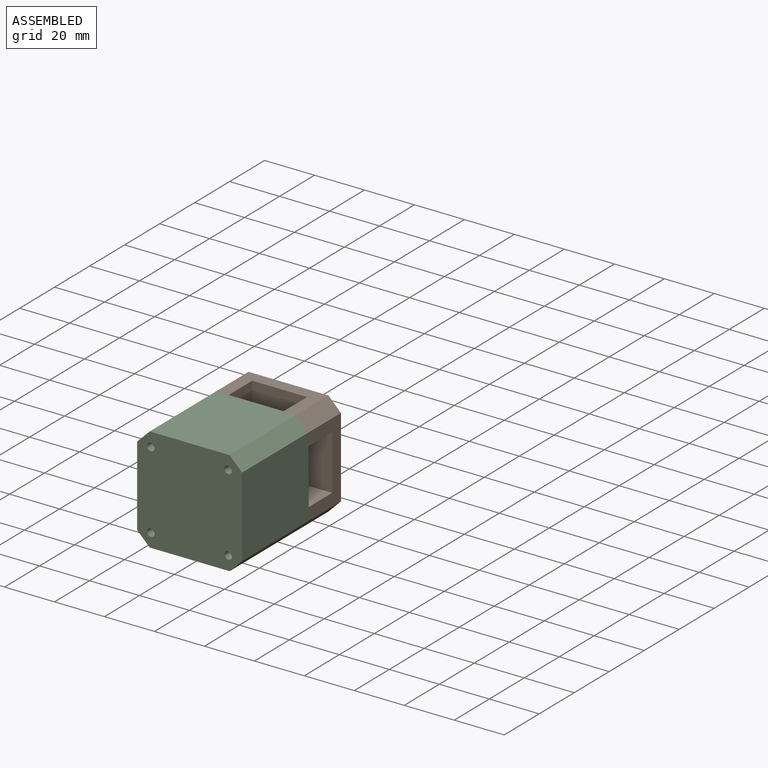
[diagram: assembled view]
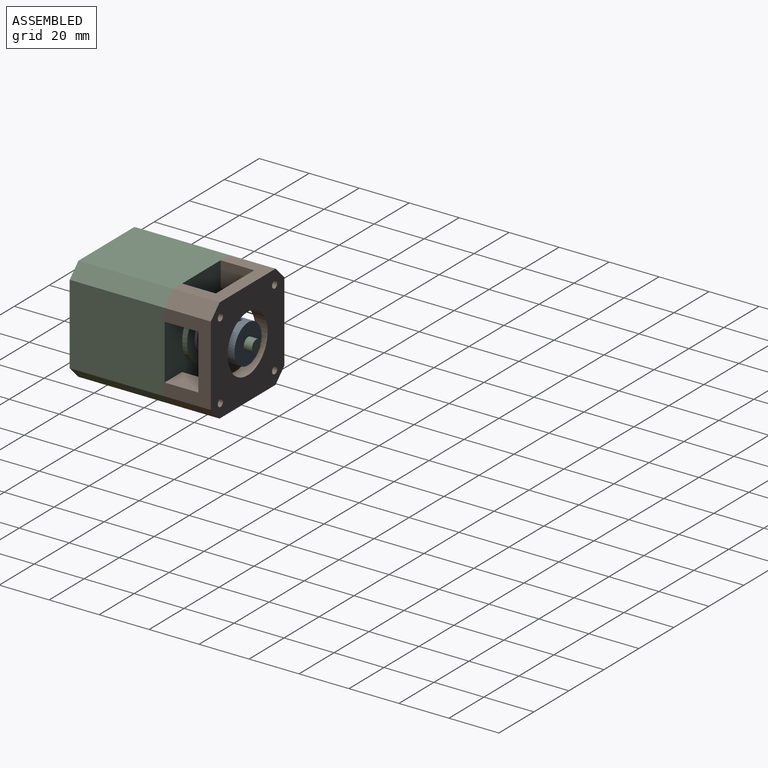
[diagram: assembled view, second angle]
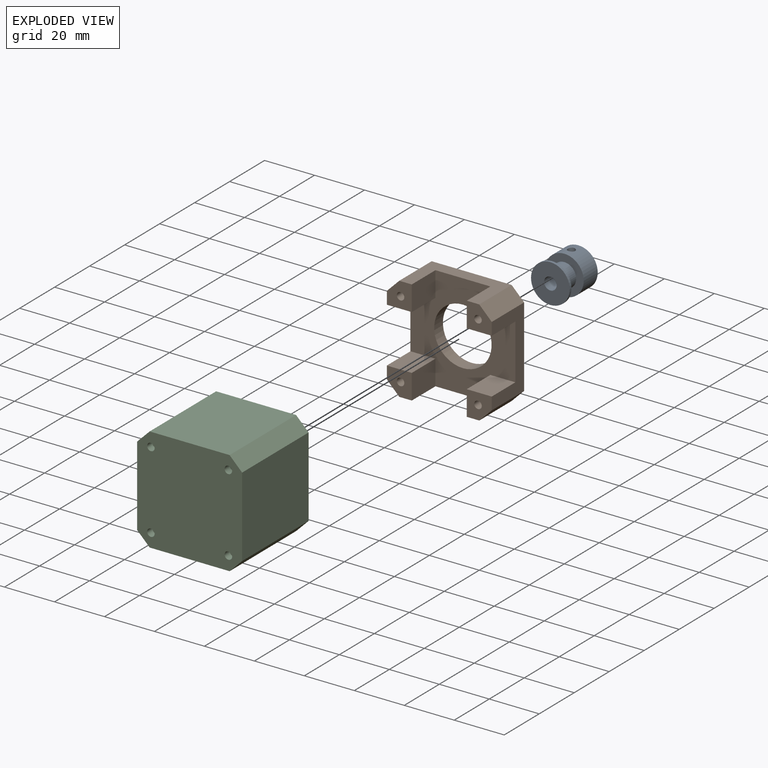
[diagram: exploded view]
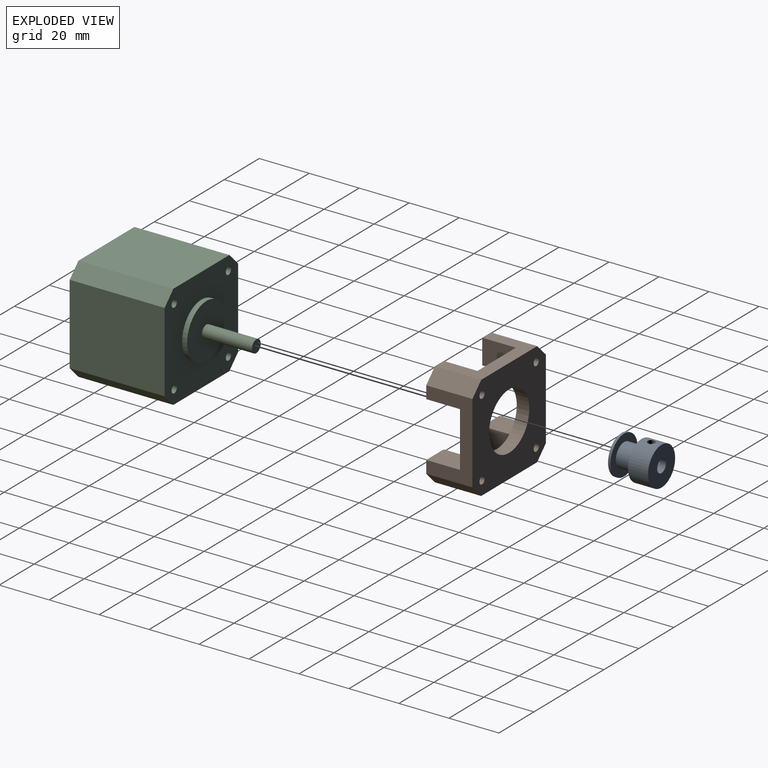
[diagram: exploded view, second angle]
ASSEMBLY  parts=3 mates=2
PART A: 10 faces, bbox 15.5x15.5x16 mm
  f0: cylinder r=7.75mm len=15.5mm, axis (0,0,-1), area 375.3mm2, adj f1,f2,f8,f9
  f1: plane 15.5x15.5mm, normal (0,0,1), area 118.4mm2, adj f0,f3
  f2: plane 15.5x15.5mm, normal (0,0,-1), area 169.1mm2, adj f0,f7
  f3: cylinder r=4.73mm len=9.46mm, axis (0,0,-1), area 208mm2, adj f1,f6
  f4: cylinder r=7.75mm len=15.5mm, axis (0,0,-1), area 48.7mm2, adj f5,f6
  f5: plane 15.5x15.5mm, normal (0,0,1), area 169.1mm2, adj f4,f7
  f6: plane 15.5x15.5mm, normal (0,0,-1), area 118.4mm2, adj f3,f4
  f7: cylinder r=2.5mm len=16mm, axis (0,0,1), area 236.5mm2, adj f2,f5,f8,f9
  f8: cylinder r=1.5mm len=5.75mm, axis (0,-1,0), area 51.1mm2, adj f0,f7
  f9: cylinder r=1.5mm len=5.75mm, axis (1,0,0), area 51.1mm2, adj f0,f7
PART B: 37 faces, bbox 42x42x18.5 mm
  f0: plane 42x42mm, normal (0,0,1), area 948.5mm2, adj f1,f2,f3,f4,f6,f7,f9,f10
  f1: plane 32x18.5mm, normal (1,0,0), area 295mm2, adj f0,f5,f9,f11,f12,f14,f23,f24
  f2: plane 32x18.5mm, normal (0,1,0), area 295mm2, adj f0,f5,f7,f8,f10,f11,f23,f26
  f3: plane 32x18.5mm, normal (-1,0,0), area 295mm2, adj f0,f5,f6,f8,f15,f17,f25,f26
  f4: plane 32x18.5mm, normal (0,-1,0), area 295mm2, adj f0,f5,f13,f14,f16,f17,f24,f25
  f5: plane 42x42mm, normal (0,0,-1), area 1270.3mm2, adj f1,f2,f3,f4,f18,f19,f20,f21
  f6: plane 13.5x10mm, normal (0,-1,0), area 135mm2, adj f0,f3,f7,f8
  f7: plane 13.5x10mm, normal (1,0,0), area 126.1mm2, adj f0,f2,f6,f8,f27,f28,f29,f30
  f8: plane 10x10mm, normal (0,0,1), area 80.4mm2, adj f2,f3,f6,f7,f22,f26
  f9: plane 13.5x10mm, normal (0,-1,0), area 135mm2, adj f0,f1,f10,f11
  f10: plane 13.5x10mm, normal (-1,0,0), area 135mm2, adj f0,f2,f9,f11
  f11: plane 10x10mm, normal (0,0,1), area 80.4mm2, adj f1,f2,f9,f10,f21,f23
  f12: plane 13.5x10mm, normal (0,1,0), area 135mm2, adj f0,f1,f13,f14
  f13: plane 13.5x10mm, normal (-1,0,0), area 135mm2, adj f0,f4,f12,f14
  f14: plane 10x10mm, normal (0,0,1), area 80.4mm2, adj f1,f4,f12,f13,f20,f24
  f15: plane 13.5x10mm, normal (0,1,0), area 135mm2, adj f0,f3,f16,f17
  f16: plane 13.5x10mm, normal (1,0,0), area 135mm2, adj f0,f4,f15,f17
  f17: plane 10x10mm, normal (0,0,1), area 80.4mm2, adj f3,f4,f15,f16,f19,f25
  f18: cylinder r=11.5mm len=23mm, axis (0,0,1), area 361.3mm2, adj f0,f5
  f19: cylinder r=1.5mm len=18.5mm, axis (0,0,1), area 174.4mm2, adj f5,f17
  f20: cylinder r=1.5mm len=18.5mm, axis (0,0,1), area 174.4mm2, adj f5,f14
  f21: cylinder r=1.5mm len=18.5mm, axis (0,0,1), area 174.4mm2, adj f5,f11
  f22: cylinder r=1.5mm len=18.5mm, axis (0,0,1), area 174.4mm2, adj f5,f8
  f23: plane 18.5x5mm, normal (0.71,0.71,0), area 130.8mm2, adj f1,f2,f5,f11
  f24: plane 18.5x5mm, normal (0.71,-0.71,0), area 130.8mm2, adj f1,f4,f5,f14
  f25: plane 18.5x5mm, normal (-0.71,-0.71,0), area 130.8mm2, adj f3,f4,f5,f17
  f26: plane 18.5x5mm, normal (-0.71,0.71,0), area 130.8mm2, adj f2,f3,f5,f8
  f27: plane 3.43x1.83mm, normal (0,-0.88,0.47), area 1.9mm2, adj f7,f28,f35,f36
  f28: plane 3.43x1.82mm, normal (0,0.88,0.47), area 1.9mm2, adj f7,f27,f29,f36
  f29: plane 0.87x0.5mm, normal (0,0,1), area 0.4mm2, adj f7,f28,f30,f36
  f30: plane 4.23x2.28mm, normal (0,-0.88,-0.47), area 2.4mm2, adj f7,f29,f31,f36
  f31: plane 2.62x0.5mm, normal (0,-1,0), area 1.3mm2, adj f7,f30,f32,f36
  f32: plane 0.81x0.5mm, normal (0,0,-1), area 0.4mm2, adj f7,f31,f33,f36
  f33: plane 2.66x0.5mm, normal (0,1,0), area 1.3mm2, adj f7,f32,f34,f36
  f34: plane 4.2x2.29mm, normal (0,0.88,-0.48), area 2.4mm2, adj f7,f33,f35,f36
  f35: plane 0.86x0.5mm, normal (0,0,1), area 0.4mm2, adj f7,f27,f34,f36
  f36: plane 6.86x5.38mm, normal (1,0,0), area 8.9mm2, adj f27,f28,f29,f30,f31,f32,f33,f34
PART C: 30 faces, bbox 42x42x60 mm
  f0: plane 38x32mm, normal (1,0,0), area 1216mm2, adj f4,f5,f7,f8
  f1: plane 38x32mm, normal (0,1,0), area 1216mm2, adj f4,f5,f8,f9
  f2: plane 38x32mm, normal (-1,0,0), area 1216mm2, adj f4,f5,f6,f9
  f3: plane 38x32mm, normal (0,-1,0), area 1216mm2, adj f4,f5,f6,f7
  f4: plane 42x42mm, normal (0,0,1), area 1305.6mm2, adj f0,f1,f2,f3,f6,f7,f8,f9
  f5: plane 42x42mm, normal (0,0,-1), area 1685.7mm2, adj f0,f1,f2,f3,f6,f7,f8,f9
  f6: plane 38x5mm, normal (-0.71,-0.71,0), area 268.7mm2, adj f2,f3,f4,f5
  f7: plane 38x5mm, normal (0.71,-0.71,0), area 268.7mm2, adj f0,f3,f4,f5
  f8: plane 38x5mm, normal (0.71,0.71,0), area 268.7mm2, adj f0,f1,f4,f5
  f9: plane 38x5mm, normal (-0.71,0.71,0), area 268.7mm2, adj f1,f2,f4,f5
  f10: cylinder r=11mm len=22mm, axis (0,0,-1), area 138.2mm2, adj f4,f11
  f11: plane 22x22mm, normal (0,0,1), area 360.5mm2, adj f10,f12
  f12: cylinder r=2.5mm len=20mm, axis (0,0,-1), area 314.2mm2, adj f11,f13
  f13: plane 5x5mm, normal (0,0,1), area 19.6mm2, adj f12
  f14: cylinder r=1.5mm len=4.5mm, axis (0,0,1), area 42.4mm2, adj f4,f15
  f15: plane 3x3mm, normal (0,0,1), area 7.1mm2, adj f14
  f16: cylinder r=1.5mm len=4.5mm, axis (0,0,1), area 42.4mm2, adj f4,f17
  f17: plane 3x3mm, normal (0,0,1), area 7.1mm2, adj f16
  f18: cylinder r=1.5mm len=4.5mm, axis (0,0,1), area 42.4mm2, adj f4,f19
  f19: plane 3x3mm, normal (0,0,1), area 7.1mm2, adj f18
  f20: cylinder r=1.5mm len=4.5mm, axis (0,0,1), area 42.4mm2, adj f4,f21
  f21: plane 3x3mm, normal (0,0,1), area 7.1mm2, adj f20
  f22: cylinder r=1.5mm len=3mm, axis (0,0,-1), area 28.3mm2, adj f5,f23
  f23: plane 3x3mm, normal (0,0,-1), area 7.1mm2, adj f22
  f24: cylinder r=1.5mm len=3mm, axis (0,0,-1), area 28.3mm2, adj f5,f25
  f25: plane 3x3mm, normal (0,0,-1), area 7.1mm2, adj f24
  f26: cylinder r=1.5mm len=3mm, axis (0,0,-1), area 28.3mm2, adj f5,f27
  f27: plane 3x3mm, normal (0,0,-1), area 7.1mm2, adj f26
  f28: cylinder r=1.5mm len=3mm, axis (0,0,-1), area 28.3mm2, adj f5,f29
  f29: plane 3x3mm, normal (0,0,-1), area 7.1mm2, adj f28
PLACE A rot(axis=(0,-0.71,0.71),180deg) t=(-1.03,266.87,104.25)mm
PLACE B rot(axis=(0.58,0.58,-0.58),120deg) t=(-1.03,266.67,104.25)mm
PLACE C rot(axis=(-1,0,0),90deg) t=(-1.03,210.17,104.25)mm
MATE planar C.f20 <-> B.f19  axis (0,1,0) through (-16.53,248.17,119.75)mm
MATE slider A.f7 <-> C.f12  axis (0,-1,0) through (-1.03,250.87,104.25)mm
